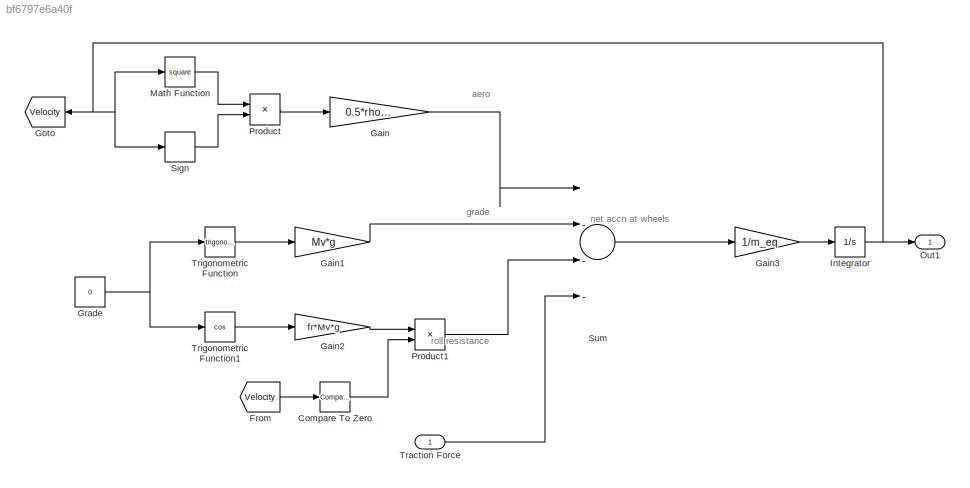
MODEL slx_bf6797e6a40f
KIND model
CONFIG AbsTol = auto
CONFIG EnableMultiTasking = off
CONFIG FixedStep = auto
CONFIG MaxStep = auto
CONFIG MinStep = auto
CONFIG RelTol = 1e-3
CONFIG SampleTimeConstraint = Unconstrained
CONFIG Solver = VariableStepAuto
CONFIG SolverName = VariableStepAuto
CONFIG StartTime = 0.0
CONFIG StopTime = 10.0
BLOCK [Reference] Compare To Zero  REF=simulink/Logic and Bit
Operations/Compare
To Zero
  Ports = [1, 1]
  SourceBlock = simulink/Logic and Bit\nOperations/Compare\nTo Zero
  SourceProductBaseCode = SL
  SourceProductName = Simulink
  SourceType = Compare To Zero
BLOCK [From] From
  GotoTag = Velocity
  TagVisibility = global
BLOCK [Gain] Gain
  Gain = 0.5*rho*Cd*Af
  OutDataTypeStr = Inherit: Inherit via internal rule
  ParamDataTypeStr = Inherit: Inherit via internal rule
  SaturateOnIntegerOverflow = off
BLOCK [Gain] Gain1
  Gain = Mv*g
  OutDataTypeStr = Inherit: Inherit via internal rule
  ParamDataTypeStr = Inherit: Inherit via internal rule
  SaturateOnIntegerOverflow = off
BLOCK [Gain] Gain2
  Gain = fr*Mv*g
  OutDataTypeStr = Inherit: Inherit via internal rule
  ParamDataTypeStr = Inherit: Inherit via internal rule
  SaturateOnIntegerOverflow = off
BLOCK [Gain] Gain3
  Gain = 1/m_eq
  OutDataTypeStr = Inherit: Inherit via internal rule
  ParamDataTypeStr = Inherit: Inherit via internal rule
  SaturateOnIntegerOverflow = off
BLOCK [Goto] Goto
  GotoTag = Velocity
  TagVisibility = global
BLOCK [Constant] Grade
  Value = 0
BLOCK [Integrator] Integrator
  Ports = [1, 1]
BLOCK [Math] Math Function
  Operator = square
  Ports = [1, 1]
BLOCK [Outport] Out1
  IconDisplay = Port number
BLOCK [Product] Product
  InputSameDT = off
  OutDataTypeStr = Inherit: Inherit via internal rule
  Ports = [2, 1]
  RndMeth = Floor
  SaturateOnIntegerOverflow = off
BLOCK [Product] Product1
  InputSameDT = off
  OutDataTypeStr = Inherit: Inherit via internal rule
  Ports = [2, 1]
  RndMeth = Floor
  SaturateOnIntegerOverflow = off
BLOCK [Signum] Sign
BLOCK [Sum] Sum
  InputSameDT = off
  Inputs = |---+
  OutDataTypeStr = Inherit: Inherit via internal rule
  Ports = [4, 1]
  SaturateOnIntegerOverflow = off
BLOCK [Inport] Traction Force
  IconDisplay = Port number
BLOCK [Trigonometry] Trigonometric Function
  Ports = [1, 1]
BLOCK [Trigonometry] Trigonometric Function1
  Operator = cos
  Ports = [1, 1]
ANNOTATION (root): aero
ANNOTATION (root): grade
ANNOTATION (root): net accn at wheels
ANNOTATION (root): roll resistance
LINE Compare To Zero:1 -> Product1:2
LINE From:1 -> Compare To Zero:1
LINE Gain1:1 -> Sum:2
LINE Gain2:1 -> Product1:1
LINE Gain3:1 -> Integrator:1
LINE Gain:1 -> Sum:1
NET Grade:1 -> Trigonometric Function1:1, Trigonometric Function:1
NET Integrator:1 -> Goto:1, Math Function:1, Out1:1, Sign:1
LINE Math Function:1 -> Product:1
LINE Product1:1 -> Sum:3
LINE Product:1 -> Gain:1
LINE Sign:1 -> Product:2
LINE Sum:1 -> Gain3:1
LINE Traction Force:1 -> Sum:4
LINE Trigonometric Function1:1 -> Gain2:1
LINE Trigonometric Function:1 -> Gain1:1
note: NET lines group one-source signal fan-out (src -> all destinations, sorted); 1:1 wires keep LINE
